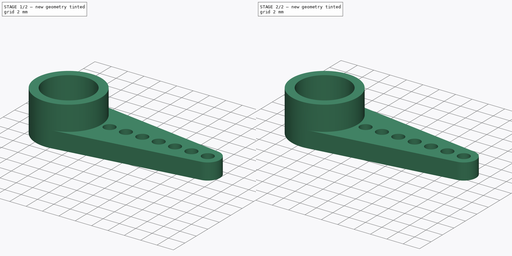
[diagram: build sequence overview — one tinted view per stage of 2, left to right]
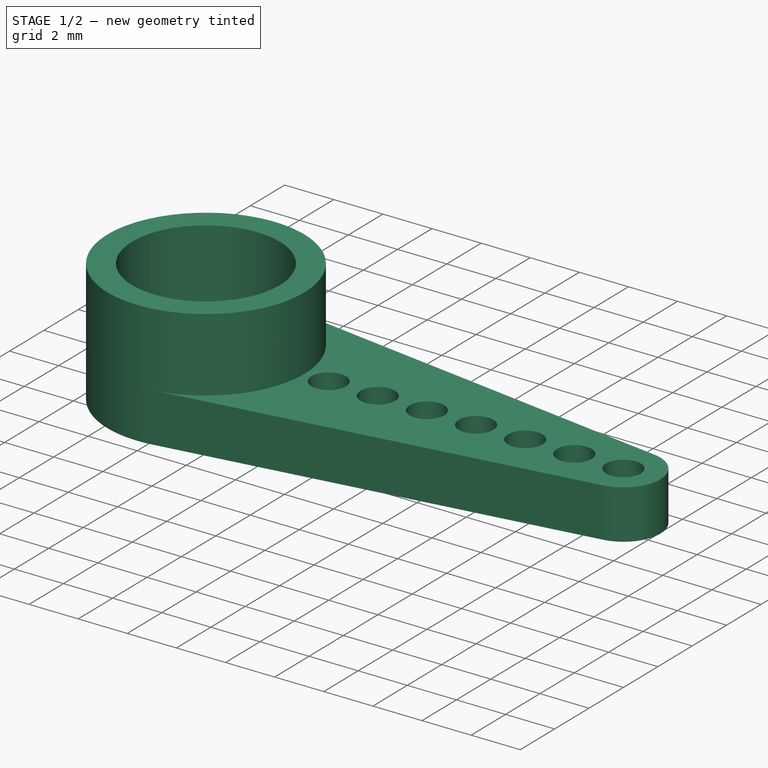
[diagram: stage 1 of 2 — iso view after this stage's code; geometry added in this stage tinted green]
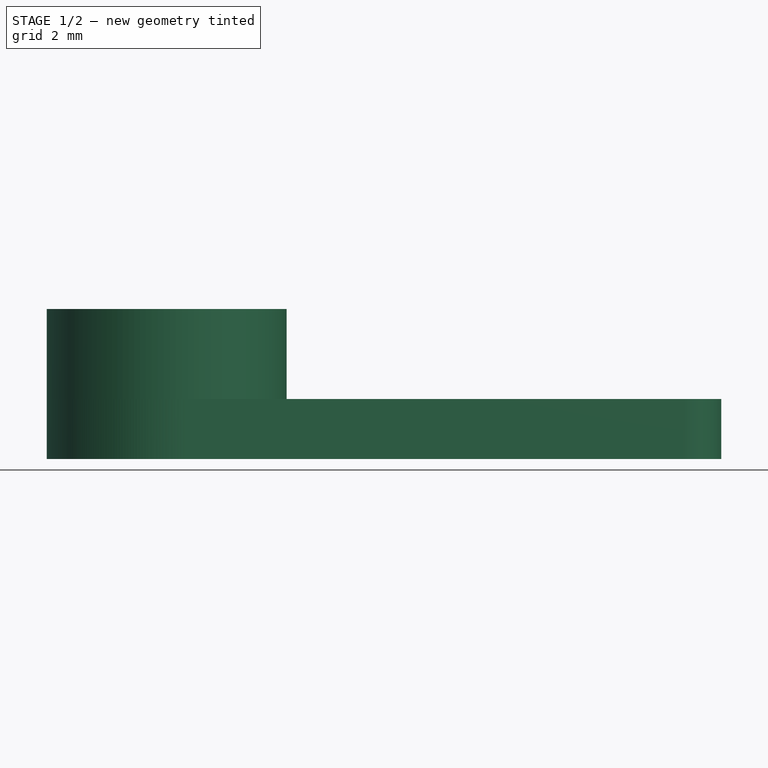
[diagram: stage 1 of 2 — front view after this stage's code; geometry added in this stage tinted green]
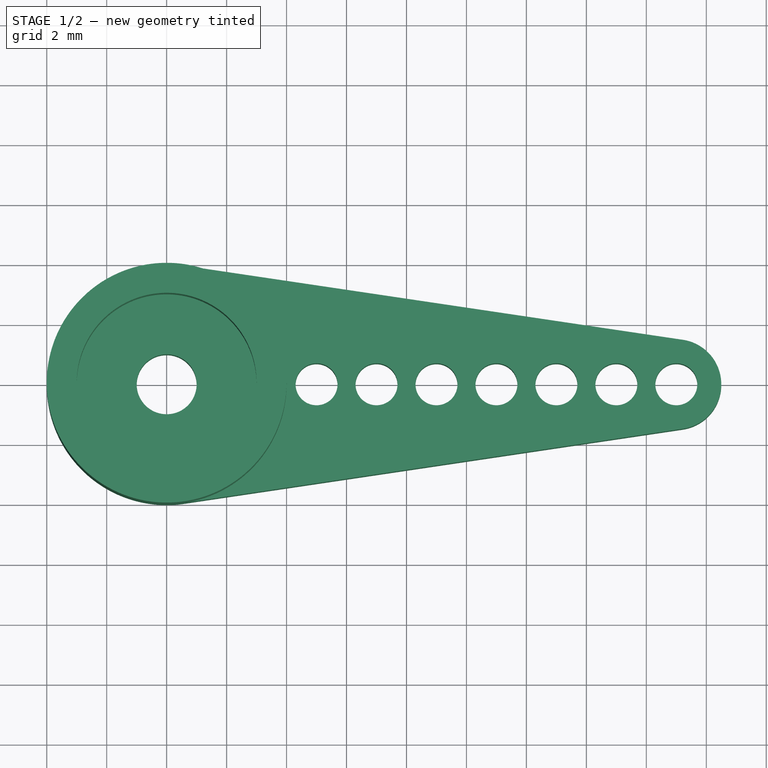
[diagram: stage 1 of 2 — top view after this stage's code; geometry added in this stage tinted green]
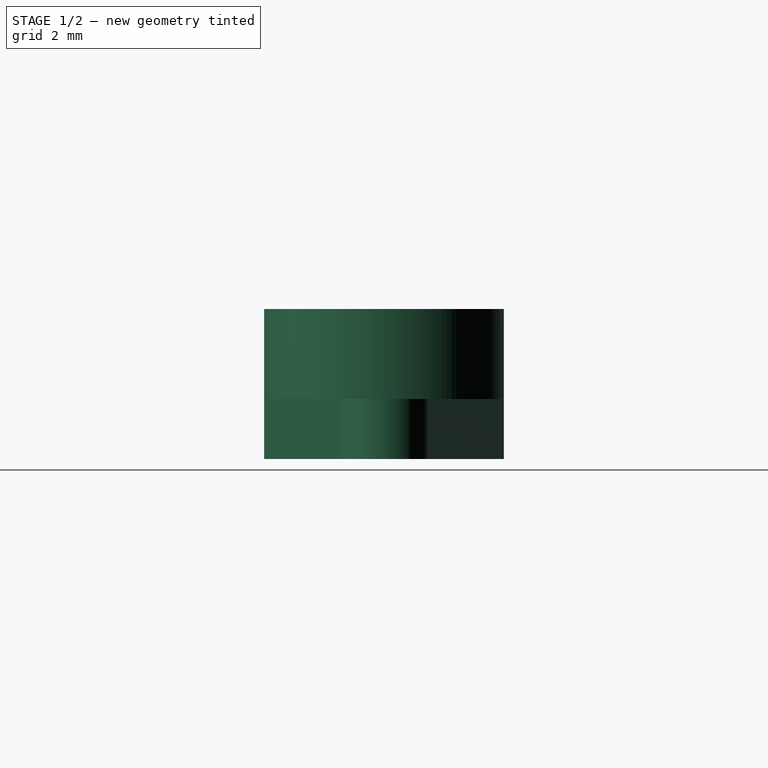
[diagram: stage 1 of 2 — right view after this stage's code; geometry added in this stage tinted green]
FCSTD DOCUMENT  (FreeCAD 0.16R5354 (Git))
Label: SG90-1-arm-horn
License: CreativeCommons Attribution-ShareAlike
LicenseURL: http://creativecommons.org/licenses/by-sa/4.0/
objects: Sketcher::SketchObject×3, PartDesign::Pad×2, Part::Fuse×1, PartDesign::Pocket×1, App::DocumentObjectGroup×1, Part::Feature×1
note: 11 computed .brp shape members not serialized (recipe doc carries the construction recipe); baked Part::Feature solids carry a one-line shape summary decoded from their .brp

FEATURE [Sketcher::SketchObject] Sketch004
  sketch-geometry (12):
    g0: ArcOfCircle CenterX=17 CenterY=0 CenterZ=0 NormalX=0 NormalY=0 NormalZ=1 Radius=1.5 StartAngle=4.85871 EndAngle=7.70639
    g1: ArcOfCircle CenterX=0 CenterY=0 CenterZ=0 NormalX=0 NormalY=0 NormalZ=1 Radius=4 StartAngle=1.4232 EndAngle=4.85998
    g2: Circle CenterX=0 CenterY=0 CenterZ=0 NormalX=0 NormalY=0 NormalZ=1 Radius=1
    g3: Circle CenterX=5 CenterY=0 CenterZ=0 NormalX=0 NormalY=0 NormalZ=1 Radius=0.7
    g4: Circle CenterX=7 CenterY=0 CenterZ=0 NormalX=0 NormalY=0 NormalZ=1 Radius=0.7
    g5: Circle CenterX=9 CenterY=0 CenterZ=0 NormalX=0 NormalY=0 NormalZ=1 Radius=0.7
    g6: Circle CenterX=11 CenterY=0 CenterZ=0 NormalX=0 NormalY=0 NormalZ=1 Radius=0.7
    g7: Circle CenterX=13 CenterY=0 CenterZ=0 NormalX=0 NormalY=0 NormalZ=1 Radius=0.7
    g8: Circle CenterX=15 CenterY=0 CenterZ=0 NormalX=0 NormalY=0 NormalZ=1 Radius=0.7
    g9: Circle CenterX=17 CenterY=0 CenterZ=0 NormalX=0 NormalY=0 NormalZ=1 Radius=0.7
    g10: LineSegment StartX=17.2206 StartY=1.48369 StartZ=0 EndX=0.588235 EndY=3.95651 EndZ=0
    g11: LineSegment StartX=17.2187 StartY=-1.48397 StartZ=0 EndX=0.588236 EndY=-3.95651 EndZ=0
  constraints (32):
    c: Coincident(g1,g-1)
    c: Radius(g2) = 1
    c: Coincident(g2,g-1)
    c: PointOnObject(g0,g-1)
    c: PointOnObject(g3,g-1)
    c: PointOnObject(g5,g-1)
    c: PointOnObject(g6,g-1)
    c: PointOnObject(g7,g-1)
    c: PointOnObject(g8,g-1)
    c: Coincident(g9,g0)
    c: Equal(g3,g4)
    c: Equal(g4,g5)
    c: Equal(g5,g6)
    c: Equal(g6,g7)
    c: Equal(g7,g8)
    c: DistanceX(g0,g8) = -2
    c: DistanceX(g8,g7) = -2
    c: DistanceX(g7,g6) = -2
    c: DistanceX(g6,g5) = -2
    c: DistanceX(g5,g4) = -2
    c: DistanceX(g4,g3) = -2
    c: PointOnObject(g4,g-1)
    c: Coincident(g10,g0)
    c: Coincident(g11,g0)
    c: Radius(g1) = 4
    c: DistanceX(g-1,g0) = 17
    c: Radius(g0) = 1.5
    c: Radius(g3) = 0.7
    c: Equal(g3,g9)
    c: Tangent(g0,g10)
    c: Coincident(g1,g10)
    c: Coincident(g1,g11)
FEATURE [Sketcher::SketchObject] Sketch005
  sketch-geometry (2):
    g0: Circle CenterX=0 CenterY=0 CenterZ=0 NormalX=0 NormalY=0 NormalZ=1 Radius=3
    g1: Circle CenterX=0 CenterY=0 CenterZ=0 NormalX=0 NormalY=0 NormalZ=1 Radius=4
  constraints (4):
    c: Coincident(g0,g-1)
    c: Radius(g0) = 3
    c: Radius(g1) = 4
    c: Coincident(g1,g-1)
FEATURE [PartDesign::Pad] Pad003
  Length = 5
  Length2 = 100
  Sketch = -> Sketch005
  Type = 0
FEATURE [PartDesign::Pad] Pad002
  Length = 2
  Length2 = 100
  Sketch = -> Sketch004
  Type = 0
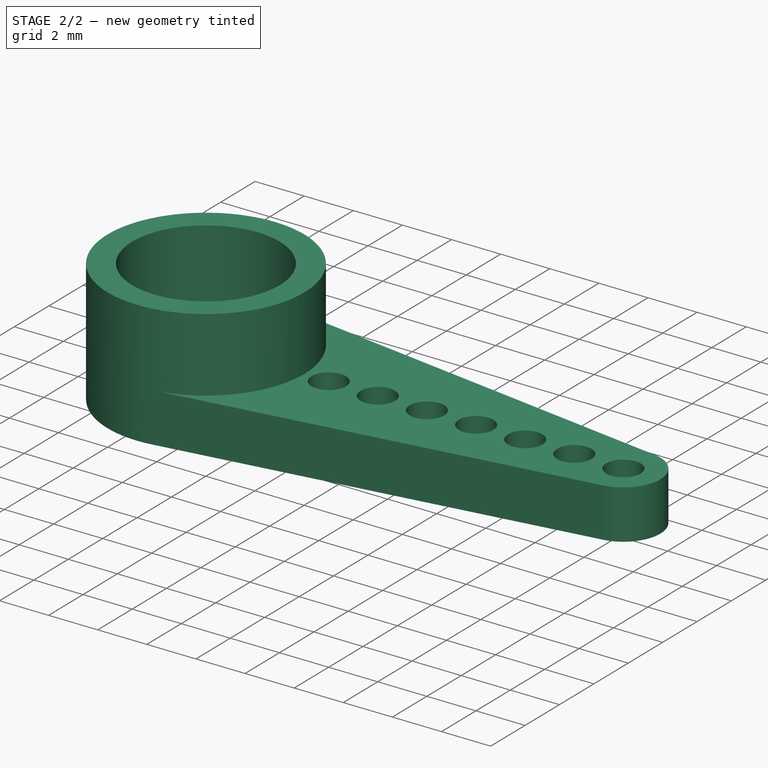
[diagram: stage 2 of 2 — iso view after this stage's code; geometry added in this stage tinted green]
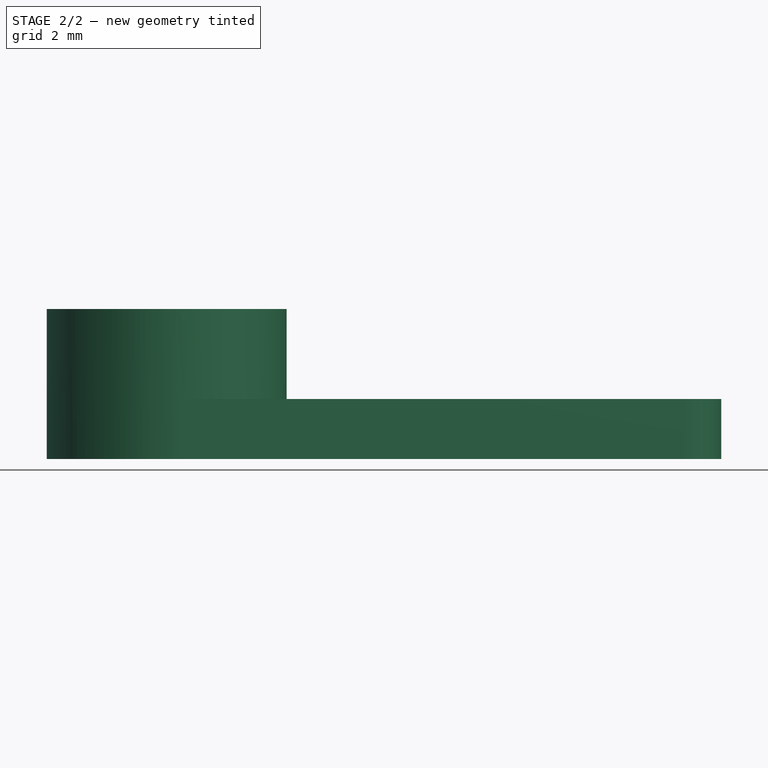
[diagram: stage 2 of 2 — front view after this stage's code; geometry added in this stage tinted green]
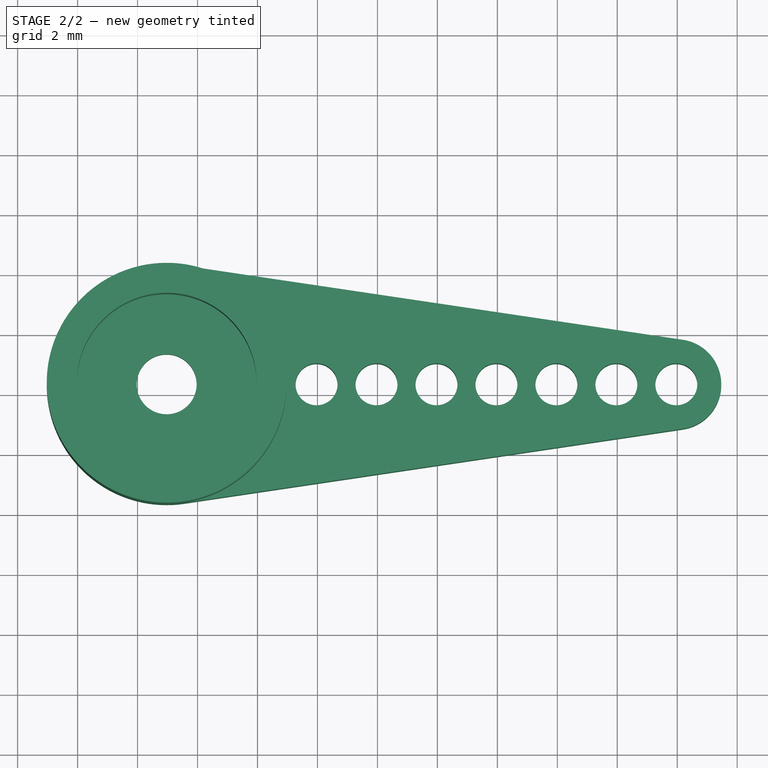
[diagram: stage 2 of 2 — top view after this stage's code; geometry added in this stage tinted green]
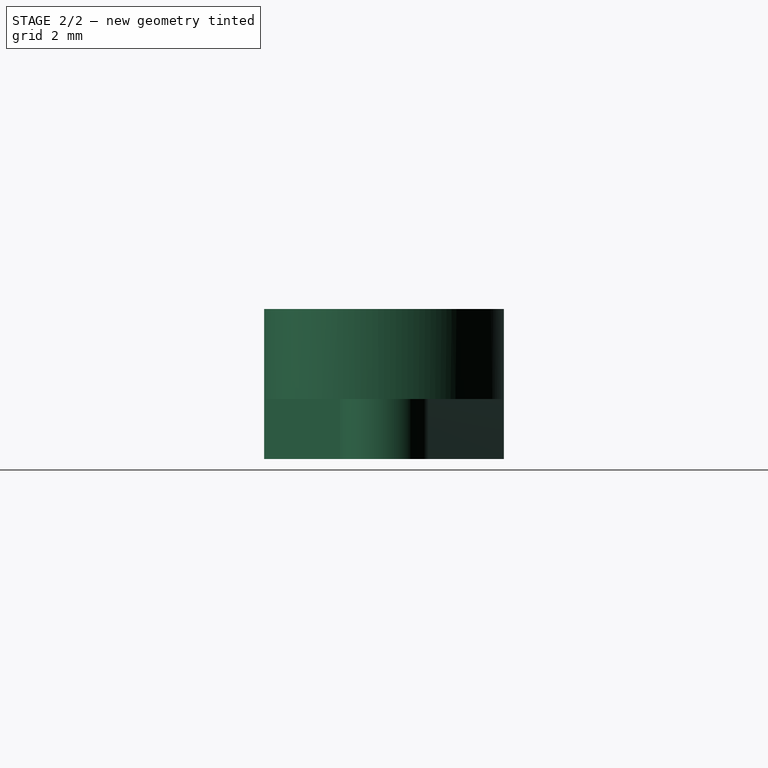
[diagram: stage 2 of 2 — right view after this stage's code; geometry added in this stage tinted green]
FEATURE [Part::Fuse] Fusion008
  Base = -> Pad002
  Placement = pos=(26.9697,36.3362,25.6722) rot=(0,0,1;0rad)
  Tool = -> Pad003
FEATURE [Sketcher::SketchObject] Sketch006
  Placement = pos=(26.9697,36.3362,25.6722) rot=(1,0,0;3.14159rad)
  Support = -> Fusion008 [Face39]
  sketch-geometry (1):
    g0: Circle CenterX=0 CenterY=0 CenterZ=0 NormalX=0 NormalY=0 NormalZ=1 Radius=2.5
  constraints (2):
    c: Coincident(g0,g-1)
    c: Radius(g0) = 2.5
FEATURE [PartDesign::Pocket] Pocket002  label="Final-horn"
  Length = 1
  Placement = pos=(26.9697,36.3362,25.6722) rot=(0,0,1;0rad)
  Sketch = -> Sketch006
  Type = 0
FEATURE [App::DocumentObjectGroup] Grupo001  label="1-arm-horn"
  Group = -> [Fusion008,Pocket002]
FEATURE [Part::Feature] Pocket002001  label="Final-1-arm-horn"
  Placement = pos=(26.9697,36.3362,25.6722) rot=(0,0,1;0rad)
  shape: bbox 22.5 x 8 x 5 mm, 19 faces (baked)
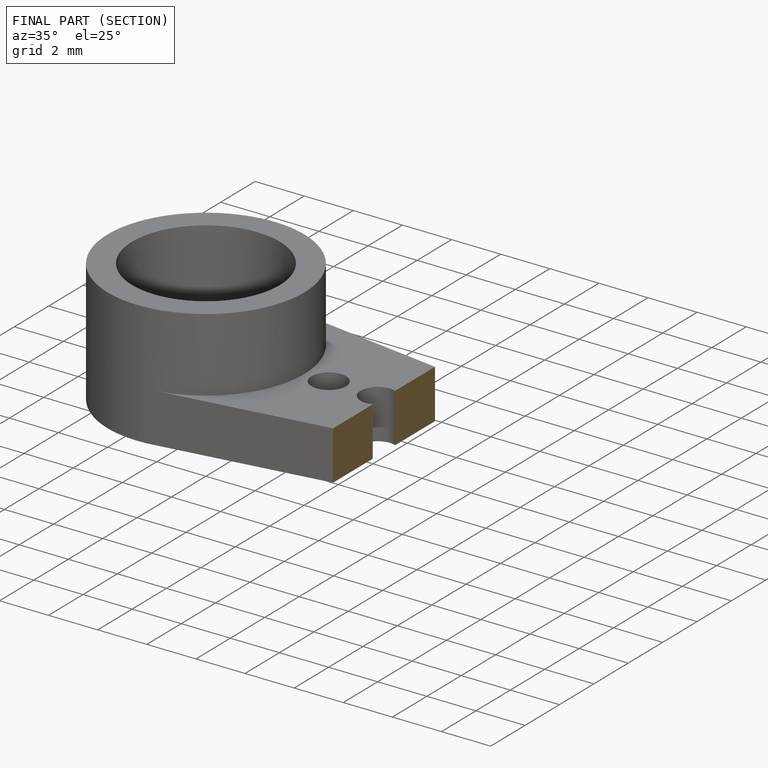
[diagram: finished part — half-section view (interior)]
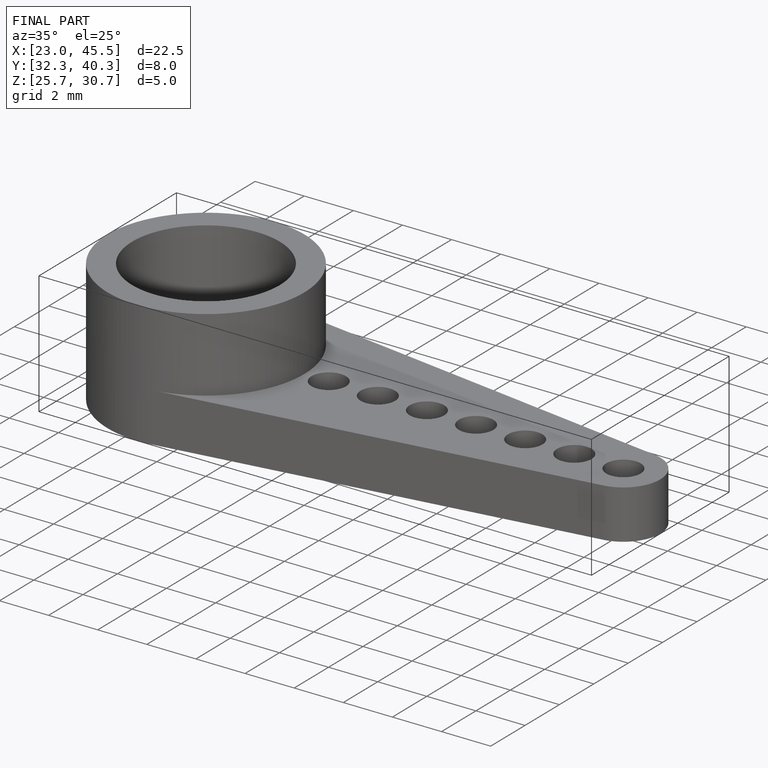
[diagram: finished part — iso view with bounding-box wireframe]
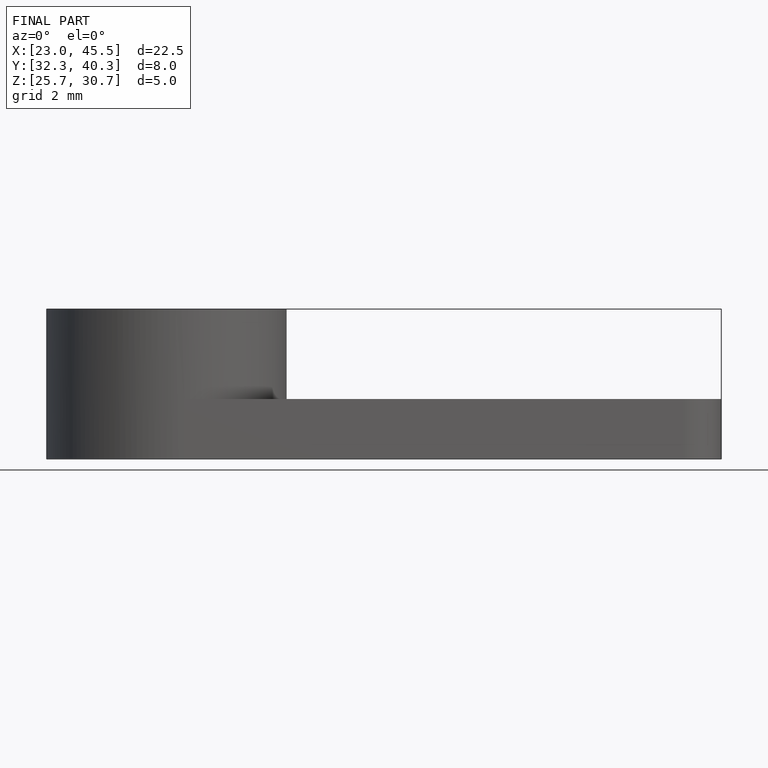
[diagram: finished part — front view with bounding-box wireframe]
